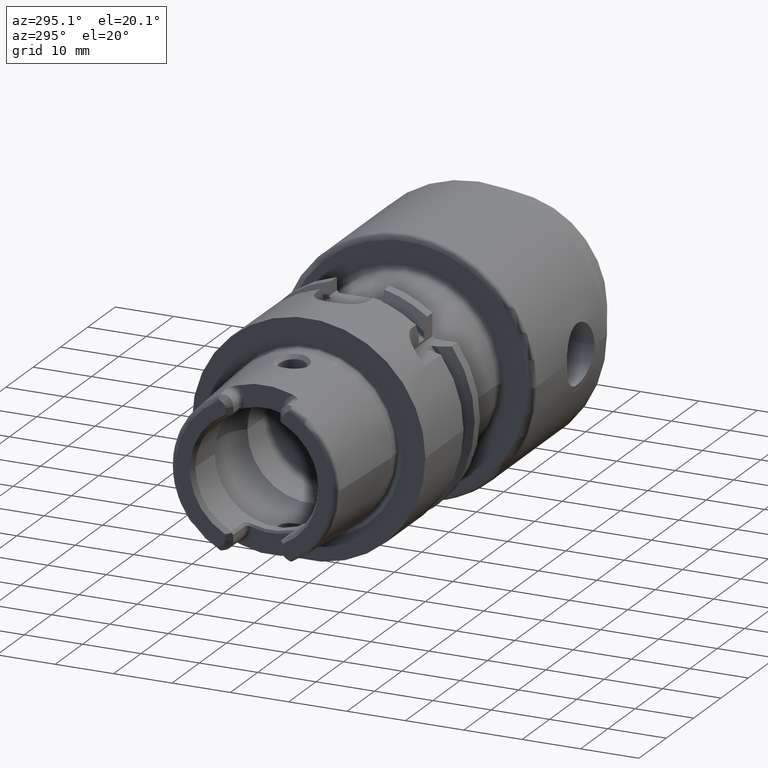
[diagram: clean part render]
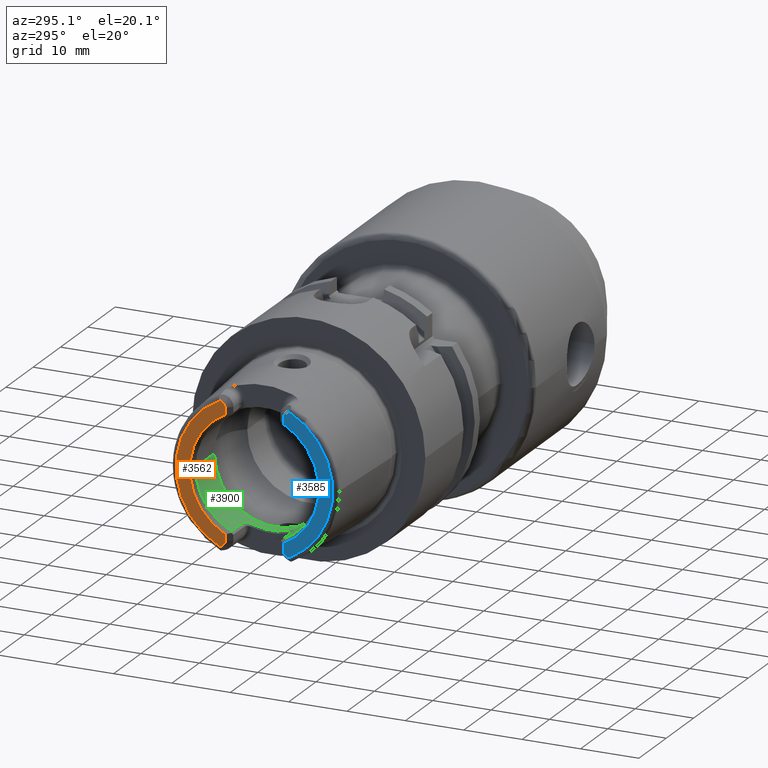
[diagram: same view with three faces highlighted in distinct colors, each labeled with its STEP entity id]
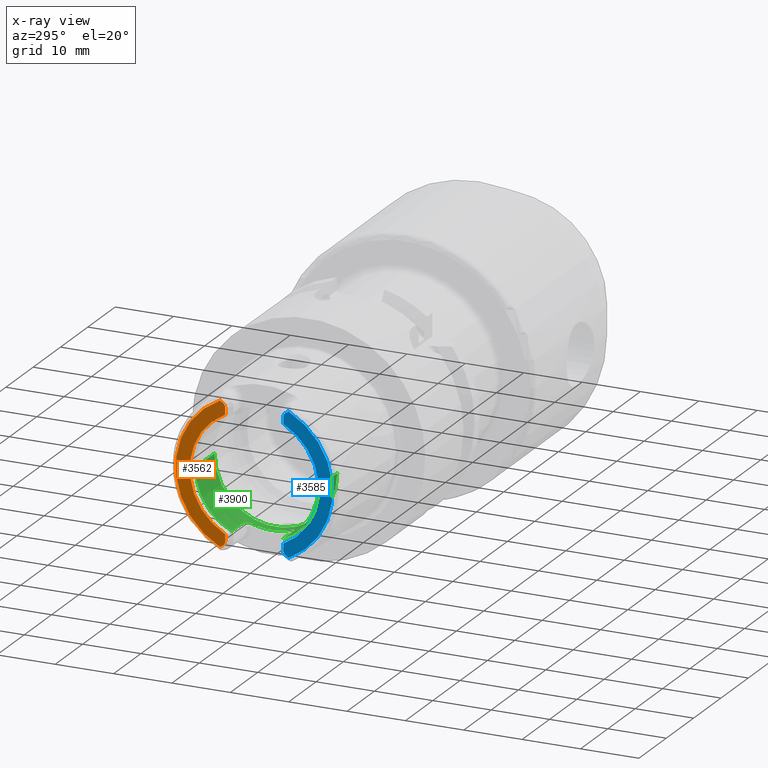
[diagram: x-ray of the same camera — body ghosted, the three highlighted faces saturated]
A machine part, auxiliary view with three faces highlighted in distinct colors.
The next image is the same camera in x-ray (body ghosted, the three faces saturated) — at least one of them is partly hidden behind the body in this view.
Their STEP definitions:

[orange] entity #3562 — the highlighted planar face has unit normal (1, 0, 0).
#84=DIRECTION('',(0.E0,0.E0,1.E0));
#85=VECTOR('',#84,1.111480217980E0);
#86=CARTESIAN_POINT('',(-1.99E1,4.975E0,-1.1E1));
#87=LINE('',#86,#85);
#88=CARTESIAN_POINT('',(-1.99E1,5.905E0,-1.1E1));
#89=DIRECTION('',(1.E0,0.E0,0.E0));
#90=DIRECTION('',(0.E0,-1.E0,0.E0));
#91=AXIS2_PLACEMENT_3D('',#88,#89,#90);
#93=DIRECTION('',(0.E0,-8.225096545346E-1,5.687511478646E-1));
#94=VECTOR('',#93,5.907345359343E-1);
#95=CARTESIAN_POINT('',(-1.99E1,5.861946291559E0,-1.210091492411E1));
#96=LINE('',#95,#94);
#97=DIRECTION('',(0.E0,-8.225096545347E-1,-5.687511478646E-1));
#98=VECTOR('',#97,5.907345359343E-1);
#99=CARTESIAN_POINT('',(-1.99E1,5.861946291559E0,1.210091492411E1));
#100=LINE('',#99,#98);
#101=CARTESIAN_POINT('',(-1.99E1,5.905E0,1.1E1));
#102=DIRECTION('',(-1.E0,0.E0,0.E0));
#103=DIRECTION('',(0.E0,-1.E0,0.E0));
#104=AXIS2_PLACEMENT_3D('',#101,#102,#103);
#106=DIRECTION('',(0.E0,0.E0,1.E0));
#107=VECTOR('',#106,1.111480217980E0);
#108=CARTESIAN_POINT('',(-1.99E1,4.975E0,9.888519782020E0));
#109=LINE('',#108,#107);
#141=CARTESIAN_POINT('',(-1.99E1,0.E0,0.E0));
#142=DIRECTION('',(1.E0,0.E0,0.E0));
#143=DIRECTION('',(0.E0,4.494338271971E-1,-8.933136263211E-1));
#144=AXIS2_PLACEMENT_3D('',#141,#142,#143);
#339=CARTESIAN_POINT('',(-1.99E1,0.E0,0.E0));
#340=DIRECTION('',(-1.E0,0.E0,0.E0));
#341=DIRECTION('',(0.E0,4.359625258411E-1,8.999648193470E-1));
#342=AXIS2_PLACEMENT_3D('',#339,#340,#341);
#3040=CARTESIAN_POINT('',(-1.99E1,4.975E0,9.888519782020E0));
#3041=CARTESIAN_POINT('',(-1.99E1,4.975E0,1.1E1));
#3042=VERTEX_POINT('',#3040);
#3043=VERTEX_POINT('',#3041);
#3044=CARTESIAN_POINT('',(-1.99E1,5.376061432486E0,1.176493397872E1));
#3045=VERTEX_POINT('',#3044);
#3046=CARTESIAN_POINT('',(-1.99E1,5.861946291559E0,1.210091492411E1));
#3047=VERTEX_POINT('',#3046);
#3072=CARTESIAN_POINT('',(-1.99E1,4.975E0,-1.1E1));
#3073=CARTESIAN_POINT('',(-1.99E1,4.975E0,-9.888519782020E0));
#3074=VERTEX_POINT('',#3072);
#3075=VERTEX_POINT('',#3073);
#3076=CARTESIAN_POINT('',(-1.99E1,5.376061432486E0,-1.176493397872E1));
#3077=VERTEX_POINT('',#3076);
#3078=CARTESIAN_POINT('',(-1.99E1,5.861946291559E0,-1.210091492411E1));
#3079=VERTEX_POINT('',#3078);
#3539=CARTESIAN_POINT('',(-1.99E1,0.E0,0.E0));
#3540=DIRECTION('',(1.E0,0.E0,0.E0));
#3541=DIRECTION('',(0.E0,-1.E0,0.E0));
#3542=AXIS2_PLACEMENT_3D('',#3539,#3540,#3541);
#3543=PLANE('',#3542);
#3545=ORIENTED_EDGE('',*,*,#3544,.F.);
#3547=ORIENTED_EDGE('',*,*,#3546,.T.);
#3549=ORIENTED_EDGE('',*,*,#3548,.F.);
#3551=ORIENTED_EDGE('',*,*,#3550,.F.);
#3553=ORIENTED_EDGE('',*,*,#3552,.T.);
#3555=ORIENTED_EDGE('',*,*,#3554,.F.);
#3557=ORIENTED_EDGE('',*,*,#3556,.F.);
#3559=ORIENTED_EDGE('',*,*,#3558,.F.);
#3560=EDGE_LOOP('',(#3545,#3547,#3549,#3551,#3553,#3555,#3557,#3559));
#3561=FACE_OUTER_BOUND('',#3560,.F.);
#3562=ADVANCED_FACE('',(#3561),#3543,.F.);
#92=CIRCLE('',#91,9.3E-1);
#105=CIRCLE('',#104,9.3E-1);
#145=CIRCLE('',#144,1.106948275573E1);
#343=CIRCLE('',#342,1.344598662523E1);
#3544=EDGE_CURVE('',#3074,#3075,#87,.T.);
#3546=EDGE_CURVE('',#3074,#3077,#92,.T.);
#3548=EDGE_CURVE('',#3079,#3077,#96,.T.);
#3550=EDGE_CURVE('',#3047,#3079,#343,.T.);
#3552=EDGE_CURVE('',#3047,#3045,#100,.T.);
#3554=EDGE_CURVE('',#3043,#3045,#105,.T.);
#3556=EDGE_CURVE('',#3042,#3043,#109,.T.);
#3558=EDGE_CURVE('',#3075,#3042,#145,.T.);

[blue] entity #3585 — the highlighted planar face has unit normal (1, 0, 0).
#110=DIRECTION('',(0.E0,0.E0,-1.E0));
#111=VECTOR('',#110,1.111480217980E0);
#112=CARTESIAN_POINT('',(-1.99E1,-4.975E0,-9.888519782020E0));
#113=LINE('',#112,#111);
#114=DIRECTION('',(0.E0,0.E0,1.E0));
#115=VECTOR('',#114,1.111480217980E0);
#116=CARTESIAN_POINT('',(-1.99E1,-4.975E0,9.888519782020E0));
#117=LINE('',#116,#115);
#118=CARTESIAN_POINT('',(-1.99E1,-5.905E0,1.1E1));
#119=DIRECTION('',(1.E0,0.E0,0.E0));
#120=DIRECTION('',(0.E0,1.E0,0.E0));
#121=AXIS2_PLACEMENT_3D('',#118,#119,#120);
#123=DIRECTION('',(0.E0,8.225096545347E-1,-5.687511478646E-1));
#124=VECTOR('',#123,5.907345359343E-1);
#125=CARTESIAN_POINT('',(-1.99E1,-5.861946291559E0,1.210091492411E1));
#126=LINE('',#125,#124);
#127=DIRECTION('',(0.E0,8.225096545347E-1,5.687511478646E-1));
#128=VECTOR('',#127,5.907345359343E-1);
#129=CARTESIAN_POINT('',(-1.99E1,-5.861946291559E0,-1.210091492411E1));
#130=LINE('',#129,#128);
#131=CARTESIAN_POINT('',(-1.99E1,-5.905E0,-1.1E1));
#132=DIRECTION('',(-1.E0,0.E0,0.E0));
#133=DIRECTION('',(0.E0,1.E0,0.E0));
#134=AXIS2_PLACEMENT_3D('',#131,#132,#133);
#205=CARTESIAN_POINT('',(-1.99E1,0.E0,0.E0));
#206=DIRECTION('',(1.E0,0.E0,0.E0));
#207=DIRECTION('',(0.E0,-4.494338271971E-1,8.933136263211E-1));
#208=AXIS2_PLACEMENT_3D('',#205,#206,#207);
#358=CARTESIAN_POINT('',(-1.99E1,0.E0,0.E0));
#359=DIRECTION('',(-1.E0,0.E0,0.E0));
#360=DIRECTION('',(0.E0,-4.359625258411E-1,-8.999648193470E-1));
#361=AXIS2_PLACEMENT_3D('',#358,#359,#360);
#3058=CARTESIAN_POINT('',(-1.99E1,-4.975E0,9.888519782020E0));
#3059=CARTESIAN_POINT('',(-1.99E1,-4.975E0,1.1E1));
#3060=VERTEX_POINT('',#3058);
#3061=VERTEX_POINT('',#3059);
#3062=CARTESIAN_POINT('',(-1.99E1,-5.376061432486E0,1.176493397872E1));
#3063=VERTEX_POINT('',#3062);
#3064=CARTESIAN_POINT('',(-1.99E1,-5.861946291559E0,1.210091492411E1));
#3065=VERTEX_POINT('',#3064);
#3090=CARTESIAN_POINT('',(-1.99E1,-4.975E0,-9.888519782020E0));
#3091=CARTESIAN_POINT('',(-1.99E1,-4.975E0,-1.1E1));
#3092=VERTEX_POINT('',#3090);
#3093=VERTEX_POINT('',#3091);
#3094=CARTESIAN_POINT('',(-1.99E1,-5.376061432486E0,-1.176493397872E1));
#3095=VERTEX_POINT('',#3094);
#3096=CARTESIAN_POINT('',(-1.99E1,-5.861946291559E0,-1.210091492411E1));
#3097=VERTEX_POINT('',#3096);
#3563=CARTESIAN_POINT('',(-1.99E1,0.E0,0.E0));
#3564=DIRECTION('',(1.E0,0.E0,0.E0));
#3565=DIRECTION('',(0.E0,-1.E0,0.E0));
#3566=AXIS2_PLACEMENT_3D('',#3563,#3564,#3565);
#3567=PLANE('',#3566);
#3569=ORIENTED_EDGE('',*,*,#3568,.F.);
#3571=ORIENTED_EDGE('',*,*,#3570,.F.);
#3573=ORIENTED_EDGE('',*,*,#3572,.T.);
#3575=ORIENTED_EDGE('',*,*,#3574,.T.);
#3576=ORIENTED_EDGE('',*,*,#3527,.F.);
#3578=ORIENTED_EDGE('',*,*,#3577,.F.);
#3580=ORIENTED_EDGE('',*,*,#3579,.T.);
#3582=ORIENTED_EDGE('',*,*,#3581,.F.);
#3583=EDGE_LOOP('',(#3569,#3571,#3573,#3575,#3576,#3578,#3580,#3582));
#3584=FACE_OUTER_BOUND('',#3583,.F.);
#3585=ADVANCED_FACE('',(#3584),#3567,.F.);
#122=CIRCLE('',#121,9.3E-1);
#135=CIRCLE('',#134,9.3E-1);
#209=CIRCLE('',#208,1.106948275573E1);
#362=CIRCLE('',#361,1.344598662523E1);
#3527=EDGE_CURVE('',#3065,#3063,#126,.T.);
#3568=EDGE_CURVE('',#3092,#3093,#113,.T.);
#3570=EDGE_CURVE('',#3060,#3092,#209,.T.);
#3572=EDGE_CURVE('',#3060,#3061,#117,.T.);
#3574=EDGE_CURVE('',#3061,#3063,#122,.T.);
#3577=EDGE_CURVE('',#3097,#3065,#362,.T.);
#3579=EDGE_CURVE('',#3097,#3095,#130,.T.);
#3581=EDGE_CURVE('',#3093,#3095,#135,.T.);

[green] entity #3900 — the highlighted cylindrical surface (partial cylindrical patch) has radius 10.521 mm, axis along (1, 0, 0).
#162=CARTESIAN_POINT('',(-1.895E1,0.E0,0.E0));
#163=DIRECTION('',(-1.E0,0.E0,0.E0));
#164=DIRECTION('',(0.E0,1.E0,0.E0));
#165=AXIS2_PLACEMENT_3D('',#162,#163,#164);
#184=CARTESIAN_POINT('',(-1.895E1,0.E0,0.E0));
#185=DIRECTION('',(-1.E0,0.E0,0.E0));
#186=DIRECTION('',(0.E0,-4.118322130602E-1,-9.112596931095E-1));
#187=AXIS2_PLACEMENT_3D('',#184,#185,#186);
#449=DIRECTION('',(1.E0,0.E0,0.E0));
#450=VECTOR('',#449,4.2E0);
#451=CARTESIAN_POINT('',(-1.895E1,-4.332886713606E0,-9.587363231205E0));
#452=LINE('',#451,#450);
#453=CARTESIAN_POINT('',(-1.361905989232E1,-3.125E0,-1.004618415121E1));
#454=CARTESIAN_POINT('',(-1.361592975632E1,-3.211047903169E0,
-1.001941779959E1));
#455=CARTESIAN_POINT('',(-1.362830690364E1,-3.376674935645E0,
-9.965489777491E0));
#456=CARTESIAN_POINT('',(-1.369487701061E1,-3.608387354773E0,
-9.883797452962E0));
#457=CARTESIAN_POINT('',(-1.380248013601E1,-3.815484612338E0,
-9.805480189149E0));
#458=CARTESIAN_POINT('',(-1.394066255616E1,-3.989788124015E0,
-9.735653861397E0));
#459=CARTESIAN_POINT('',(-1.411012006945E1,-4.135710131103E0,
-9.674392936759E0));
#460=CARTESIAN_POINT('',(-1.430410390614E1,-4.245967146699E0,
-9.626339205832E0));
#461=CARTESIAN_POINT('',(-1.452166896898E1,-4.316666764177E0,
-9.594719443668E0));
#462=CARTESIAN_POINT('',(-1.467238435691E1,-4.332886713606E0,
-9.587363231205E0));
#463=CARTESIAN_POINT('',(-1.475E1,-4.332886713606E0,-9.587363231205E0));
#465=CARTESIAN_POINT('',(-1.361905989232E1,3.125E0,-1.004618415121E1));
#466=CARTESIAN_POINT('',(-1.361905989232E1,2.721042228969E0,-1.017184062092E1));
#467=CARTESIAN_POINT('',(-1.361905989235E1,1.897951985784E0,-1.037436441745E1));
#468=CARTESIAN_POINT('',(-1.361905989234E1,6.357304159773E-1,
-1.052736939476E1));
#469=CARTESIAN_POINT('',(-1.361905989234E1,-6.357304159773E-1,
-1.052736939476E1));
#470=CARTESIAN_POINT('',(-1.361905989235E1,-1.897951985784E0,
-1.037436441746E1));
#471=CARTESIAN_POINT('',(-1.361905989232E1,-2.721042228969E0,
-1.017184062091E1));
#472=CARTESIAN_POINT('',(-1.361905989232E1,-3.125E0,-1.004618415121E1));
#474=CARTESIAN_POINT('',(-1.475E1,4.332886713606E0,-9.587363231205E0));
#475=CARTESIAN_POINT('',(-1.467285006857E1,4.332886713606E0,-9.587363231205E0));
#476=CARTESIAN_POINT('',(-1.452307041867E1,4.316718593707E0,-9.594693336977E0));
#477=CARTESIAN_POINT('',(-1.430926406065E1,4.248069617223E0,-9.625405215616E0));
#478=CARTESIAN_POINT('',(-1.411435139104E1,4.138751657454E0,-9.673089130358E0));
#479=CARTESIAN_POINT('',(-1.394441708920E1,3.993617830691E0,-9.734075777499E0));
#480=CARTESIAN_POINT('',(-1.380572565004E1,3.820495104545E0,-9.803525976760E0));
#481=CARTESIAN_POINT('',(-1.369643644861E1,3.612675047199E0,-9.882244600219E0));
#482=CARTESIAN_POINT('',(-1.362856837010E1,3.378987943032E0,-9.964725252688E0));
#483=CARTESIAN_POINT('',(-1.361589935315E1,3.211883690699E0,-1.001915781670E1));
#484=CARTESIAN_POINT('',(-1.361905989232E1,3.125E0,-1.004618415121E1));
#486=DIRECTION('',(1.E0,0.E0,0.E0));
#487=VECTOR('',#486,4.2E0);
#488=CARTESIAN_POINT('',(-1.895E1,4.332886713606E0,-9.587363231205E0));
#489=LINE('',#488,#487);
#490=DIRECTION('',(-1.E0,0.E0,0.E0));
#491=VECTOR('',#490,6.964774086463E0);
#492=CARTESIAN_POINT('',(-1.198522591354E1,1.0521E1,0.E0));
#493=LINE('',#492,#491);
#494=CARTESIAN_POINT('',(-1.198522591354E1,0.E0,0.E0));
#495=DIRECTION('',(-1.E0,0.E0,0.E0));
#496=DIRECTION('',(0.E0,1.E0,0.E0));
#497=AXIS2_PLACEMENT_3D('',#494,#495,#496);
#499=DIRECTION('',(-1.E0,0.E0,0.E0));
#500=VECTOR('',#499,6.964774086463E0);
#501=CARTESIAN_POINT('',(-1.198522591354E1,-1.0521E1,0.E0));
#502=LINE('',#501,#500);
#3032=CARTESIAN_POINT('',(-1.475E1,-4.332886713606E0,-9.587363231205E0));
#3033=VERTEX_POINT('',#3032);
#3034=CARTESIAN_POINT('',(-1.361905989232E1,-3.125E0,-1.004618415121E1));
#3035=VERTEX_POINT('',#3034);
#3036=CARTESIAN_POINT('',(-1.475E1,4.332886713606E0,-9.587363231205E0));
#3037=VERTEX_POINT('',#3036);
#3038=CARTESIAN_POINT('',(-1.361905989232E1,3.125E0,-1.004618415121E1));
#3039=VERTEX_POINT('',#3038);
#3291=CARTESIAN_POINT('',(-1.198522591354E1,1.0521E1,0.E0));
#3292=VERTEX_POINT('',#3291);
#3293=CARTESIAN_POINT('',(-1.895E1,1.0521E1,0.E0));
#3294=VERTEX_POINT('',#3293);
#3303=CARTESIAN_POINT('',(-1.198522591354E1,-1.0521E1,0.E0));
#3304=VERTEX_POINT('',#3303);
#3305=CARTESIAN_POINT('',(-1.895E1,-1.0521E1,0.E0));
#3306=VERTEX_POINT('',#3305);
#3311=CARTESIAN_POINT('',(-1.895E1,-4.332886713606E0,-9.587363231205E0));
#3312=VERTEX_POINT('',#3311);
#3313=CARTESIAN_POINT('',(-1.895E1,4.332886713606E0,-9.587363231205E0));
#3314=VERTEX_POINT('',#3313);
#3876=CARTESIAN_POINT('',(-2.12925E1,0.E0,0.E0));
#3877=DIRECTION('',(1.E0,0.E0,0.E0));
#3878=DIRECTION('',(0.E0,-1.E0,0.E0));
#3879=AXIS2_PLACEMENT_3D('',#3876,#3877,#3878);
#3880=CYLINDRICAL_SURFACE('',#3879,1.0521E1);
#3882=ORIENTED_EDGE('',*,*,#3881,.T.);
#3884=ORIENTED_EDGE('',*,*,#3883,.F.);
#3886=ORIENTED_EDGE('',*,*,#3885,.F.);
#3888=ORIENTED_EDGE('',*,*,#3887,.F.);
#3889=ORIENTED_EDGE('',*,*,#3868,.F.);
#3890=ORIENTED_EDGE('',*,*,#3616,.F.);
#3892=ORIENTED_EDGE('',*,*,#3891,.F.);
#3894=ORIENTED_EDGE('',*,*,#3893,.T.);
#3896=ORIENTED_EDGE('',*,*,#3895,.T.);
#3897=ORIENTED_EDGE('',*,*,#3632,.F.);
#3898=EDGE_LOOP('',(#3882,#3884,#3886,#3888,#3889,#3890,#3892,#3894,#3896,
#3897));
#3899=FACE_OUTER_BOUND('',#3898,.F.);
#3900=ADVANCED_FACE('',(#3899),#3880,.F.);
#166=CIRCLE('',#165,1.0521E1);
#188=CIRCLE('',#187,1.0521E1);
#464=B_SPLINE_CURVE_WITH_KNOTS('',3,(#453,#454,#455,#456,#457,#458,#459,#460,
#461,#462,#463),.UNSPECIFIED.,.F.,.F.,(4,1,1,1,1,1,1,1,4),(0.E0,1.25E-1,2.5E-1,
3.75E-1,5.E-1,6.25E-1,7.5E-1,8.75E-1,1.E0),.UNSPECIFIED.);
#473=B_SPLINE_CURVE_WITH_KNOTS('',3,(#465,#466,#467,#468,#469,#470,#471,#472),
.UNSPECIFIED.,.F.,.F.,(4,1,1,1,1,4),(0.E0,2.E-1,4.E-1,6.E-1,8.E-1,1.E0),
.UNSPECIFIED.);
#485=B_SPLINE_CURVE_WITH_KNOTS('',3,(#474,#475,#476,#477,#478,#479,#480,#481,
#482,#483,#484),.UNSPECIFIED.,.F.,.F.,(4,1,1,1,1,1,1,1,4),(0.E0,1.25E-1,2.5E-1,
3.75E-1,5.E-1,6.25E-1,7.5E-1,8.75E-1,1.E0),.UNSPECIFIED.);
#498=CIRCLE('',#497,1.0521E1);
#3616=EDGE_CURVE('',#3294,#3314,#166,.T.);
#3632=EDGE_CURVE('',#3312,#3306,#188,.T.);
#3868=EDGE_CURVE('',#3314,#3037,#489,.T.);
#3881=EDGE_CURVE('',#3312,#3033,#452,.T.);
#3883=EDGE_CURVE('',#3035,#3033,#464,.T.);
#3885=EDGE_CURVE('',#3039,#3035,#473,.T.);
#3887=EDGE_CURVE('',#3037,#3039,#485,.T.);
#3891=EDGE_CURVE('',#3292,#3294,#493,.T.);
#3893=EDGE_CURVE('',#3292,#3304,#498,.T.);
#3895=EDGE_CURVE('',#3304,#3306,#502,.T.);